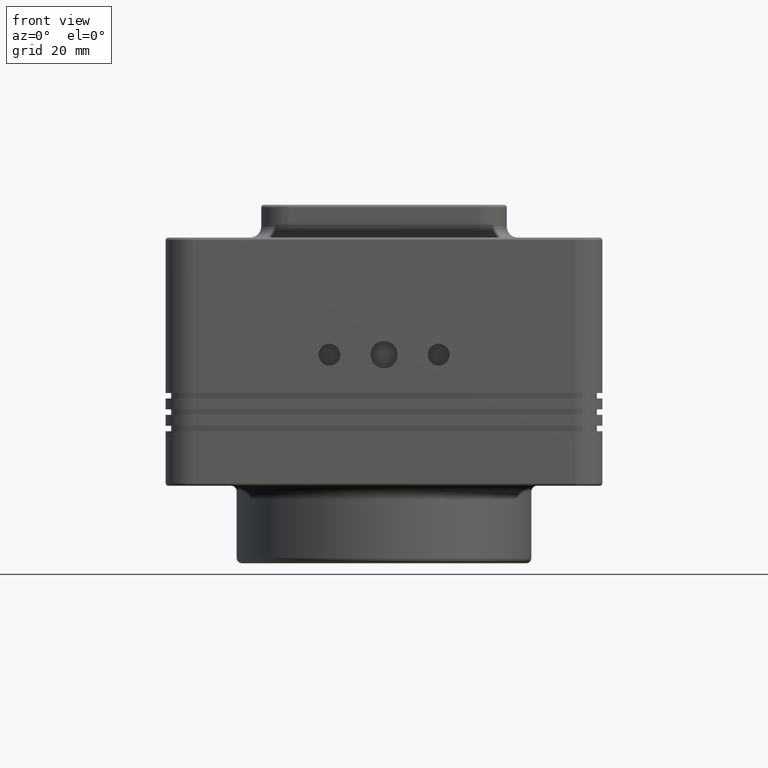
[diagram: clean part render]
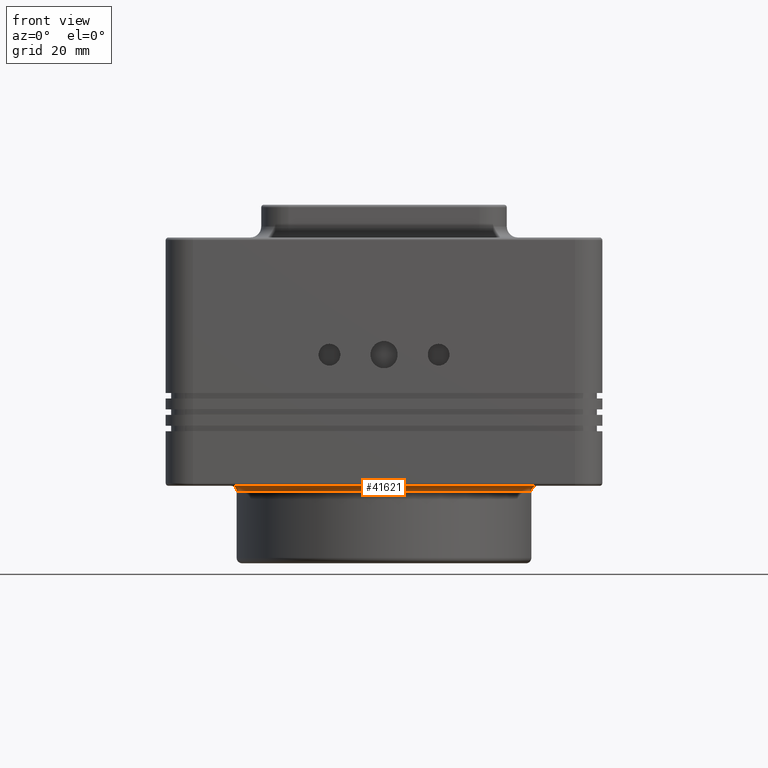
[diagram: same view with one face highlighted and labeled with its STEP entity id]
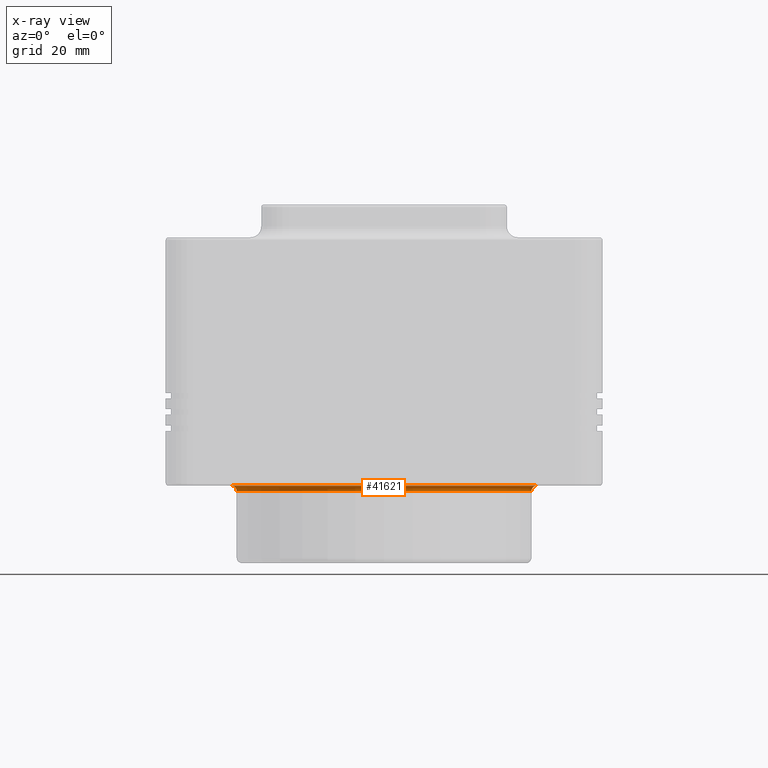
[diagram: x-ray of the same camera — body ghosted, the highlighted face saturated]
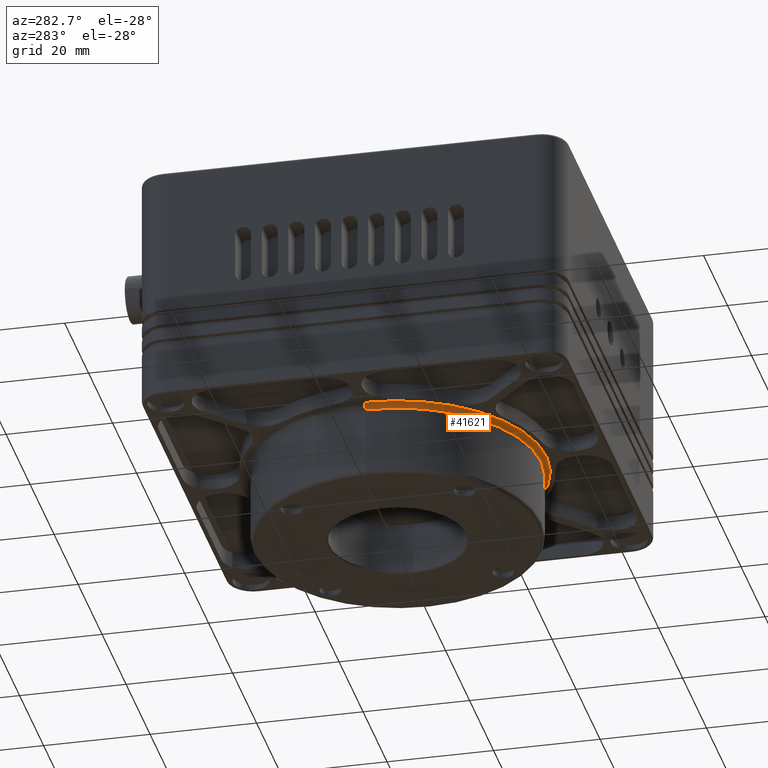
[diagram: same view with one face highlighted and labeled with its STEP entity id]
A machine part, front view. The second image highlights one B-rep face of the part: STEP entity #41621.
The next image is the same camera in x-ray: the body ghosted, the highlighted face saturated — about 0% of this face is hidden behind the body in this view.
A second angle (auxiliary view) of the same face is appended — the face is thin or edge-on in the first view.
In plain terms, the highlighted toroidal blend (fillet) surface has major radius 28 mm and minor (blend) radius 1 mm.
Its self-contained STEP definition (entity closure, byte-faithful):
#1559 = DIRECTION ( 'NONE',  ( 0.000000000000000000, 0.000000000000000000, 1.000000000000000000 ) ) ;
#2158 = EDGE_LOOP ( 'NONE', ( #21370, #40725, #10229, #48932 ) ) ;
#3466 = VERTEX_POINT ( 'NONE', #42025 ) ;
#4596 = AXIS2_PLACEMENT_3D ( 'NONE', #21328, #16350, #12479 ) ;
#4677 = EDGE_CURVE ( 'NONE', #49861, #43842, #12508, .T. ) ;
#6865 = CARTESIAN_POINT ( 'NONE',  ( -27.00000000000000000, 3.367778697655221702E-15, -16.80000000000000071 ) ) ;
#7141 = CIRCLE ( 'NONE', #46821, 1.000000000000000888 ) ;
#10229 = ORIENTED_EDGE ( 'NONE', *, *, #12473, .F. ) ;
#12473 = EDGE_CURVE ( 'NONE', #3466, #43842, #41307, .T. ) ;
#12479 = DIRECTION ( 'NONE',  ( -1.000000000000000000, 1.224646799147349509E-16, 0.000000000000000000 ) ) ;
#12508 = CIRCLE ( 'NONE', #4596, 1.000000000000000888 ) ;
#14396 = TOROIDAL_SURFACE ( 'NONE', #22344, 28.00000000000000000, 1.000000000000000000 ) ;
#16350 = DIRECTION ( 'NONE',  ( 1.224646799147353207E-16, 1.000000000000000000, -0.000000000000000000 ) ) ;
#19784 = DIRECTION ( 'NONE',  ( 1.000000000000000000, 0.000000000000000000, 0.000000000000000000 ) ) ;
#21328 = CARTESIAN_POINT ( 'NONE',  ( -28.00000000000000000, 3.429011037612589276E-15, -16.80000000000000071 ) ) ;
#21370 = ORIENTED_EDGE ( 'NONE', *, *, #23382, .F. ) ;
#22344 = AXIS2_PLACEMENT_3D ( 'NONE', #47947, #1559, #19784 ) ;
#23382 = EDGE_CURVE ( 'NONE', #49861, #34912, #43062, .T. ) ;
#25746 = EDGE_CURVE ( 'NONE', #34912, #3466, #7141, .T. ) ;
#28207 = CARTESIAN_POINT ( 'NONE',  ( 28.00000000000000000, 0.000000000000000000, -15.80000000000000071 ) ) ;
#30597 = FACE_OUTER_BOUND ( 'NONE', #2158, .T. ) ;
#31014 = DIRECTION ( 'NONE',  ( 0.000000000000000000, 0.000000000000000000, 1.000000000000000000 ) ) ;
#31634 = DIRECTION ( 'NONE',  ( 0.000000000000000000, 0.000000000000000000, -1.000000000000000000 ) ) ;
#33398 = AXIS2_PLACEMENT_3D ( 'NONE', #53104, #36581, #40427 ) ;
#34912 = VERTEX_POINT ( 'NONE', #28207 ) ;
#35159 = AXIS2_PLACEMENT_3D ( 'NONE', #44222, #31014, #39281 ) ;
#36581 = DIRECTION ( 'NONE',  ( 0.000000000000000000, 0.000000000000000000, -1.000000000000000000 ) ) ;
#39281 = DIRECTION ( 'NONE',  ( 1.000000000000000000, 0.000000000000000000, 0.000000000000000000 ) ) ;
#40427 = DIRECTION ( 'NONE',  ( 1.000000000000000000, 0.000000000000000000, 0.000000000000000000 ) ) ;
#40725 = ORIENTED_EDGE ( 'NONE', *, *, #4677, .T. ) ;
#41307 = CIRCLE ( 'NONE', #33398, 27.00000000000000000 ) ;
#41621 = ADVANCED_FACE ( 'NONE', ( #30597 ), #14396, .F. ) ;
#42025 = CARTESIAN_POINT ( 'NONE',  ( 27.00000000000000000, 0.000000000000000000, -16.80000000000000071 ) ) ;
#43062 = CIRCLE ( 'NONE', #35159, 28.00000000000000000 ) ;
#43842 = VERTEX_POINT ( 'NONE', #6865 ) ;
#44222 = CARTESIAN_POINT ( 'NONE',  ( 0.000000000000000000, 0.000000000000000000, -15.80000000000000071 ) ) ;
#45104 = DIRECTION ( 'NONE',  ( 0.000000000000000000, -1.000000000000000000, 0.000000000000000000 ) ) ;
#46821 = AXIS2_PLACEMENT_3D ( 'NONE', #53105, #45104, #31634 ) ;
#47947 = CARTESIAN_POINT ( 'NONE',  ( 0.000000000000000000, 0.000000000000000000, -16.80000000000000071 ) ) ;
#48138 = CARTESIAN_POINT ( 'NONE',  ( -28.00000000000000000, 3.429011037612589276E-15, -15.80000000000000071 ) ) ;
#48932 = ORIENTED_EDGE ( 'NONE', *, *, #25746, .F. ) ;
#49861 = VERTEX_POINT ( 'NONE', #48138 ) ;
#53104 = CARTESIAN_POINT ( 'NONE',  ( 0.000000000000000000, 0.000000000000000000, -16.80000000000000071 ) ) ;
#53105 = CARTESIAN_POINT ( 'NONE',  ( 28.00000000000000000, 0.000000000000000000, -16.80000000000000071 ) ) ;